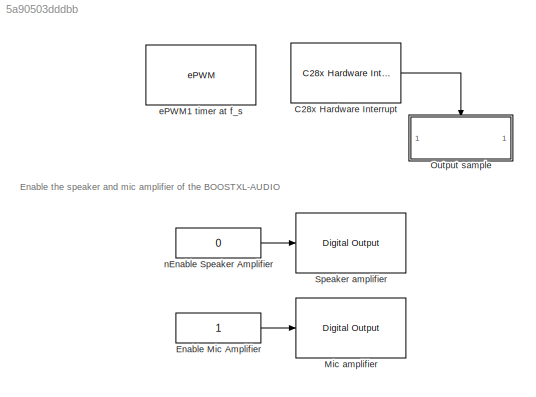
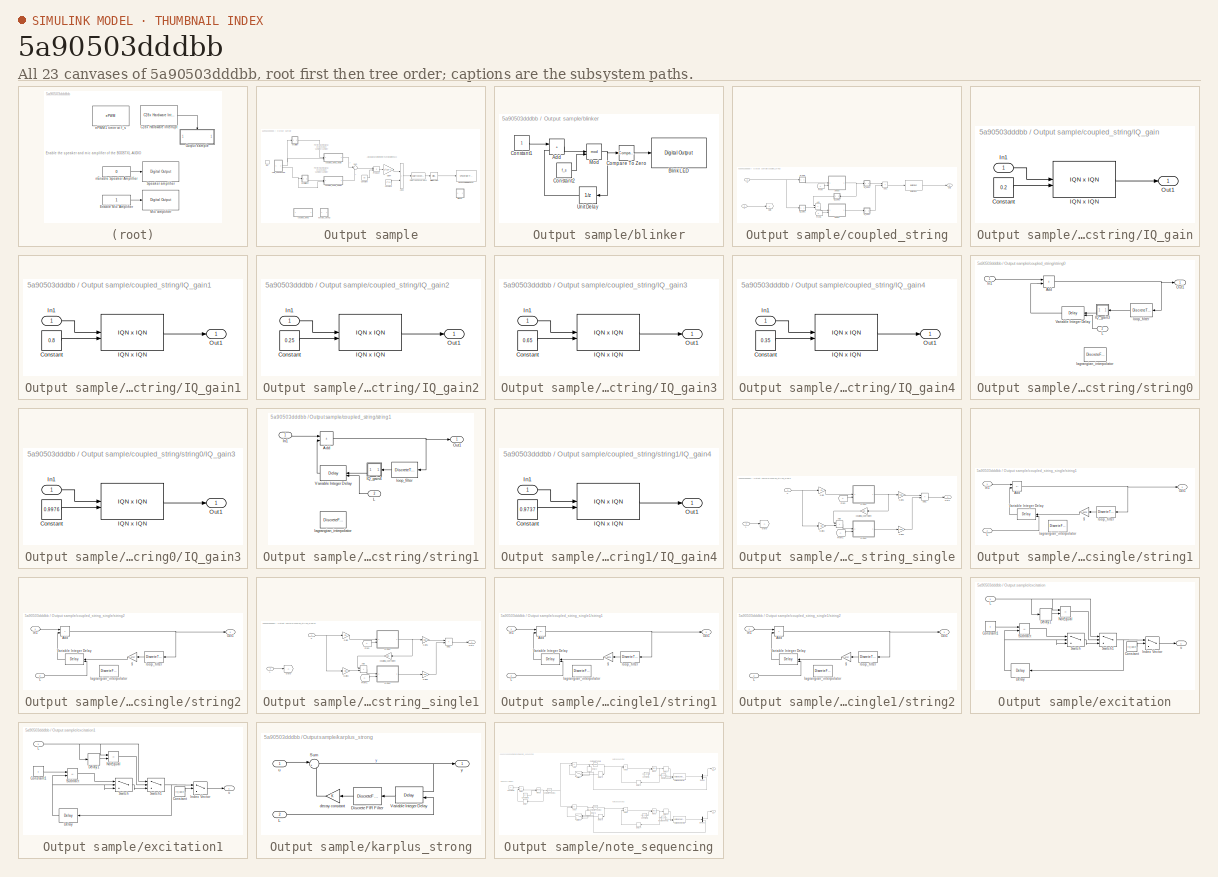
[diagram: thumbnail index - all 23 canvases of the model, root first then tree order]
MODEL slx_5a90503dddbb
KIND model
CONFIG AbsTol = auto
CONFIG EnableMultiTasking = off
CONFIG FixedStep = auto
CONFIG MaxStep = auto
CONFIG MinStep = auto
CONFIG RelTol = 1e-3
CONFIG SampleTimeConstraint = Unconstrained
CONFIG SolverName = FixedStepAuto
CONFIG StartTime = 0.0
CONFIG StopTime = 100000.0
BLOCK [Reference] C28x Hardware Interrupt  REF=c2000lib/Scheduling/C28x Hardware Interrupt
  SourceBlock = c2000lib/Scheduling/C28x Hardware Interrupt
  SourceType = C28x Interrupt Block
BLOCK [Constant] Enable Mic Amplifier
BLOCK [Reference] Mic amplifier  REF=c2837xDlib/Digital Output
  SourceBlock = c2837xDlib/Digital Output
  SourceType = F2837x GPIO Digital Output
  UserDataPersistent = on
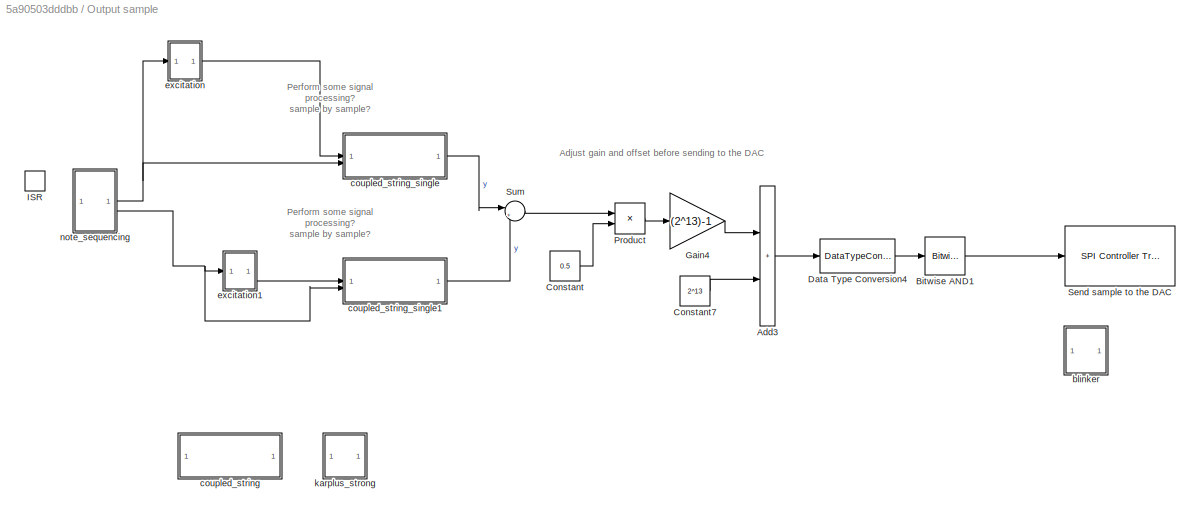
BLOCK [SubSystem] Output sample
  TreatAsAtomicUnit = on
BLOCK [Sum] Output sample/Add3
  IconShape = rectangular
BLOCK [Reference] Output sample/Bitwise AND1  REF=simulink/Logic and Bit
Operations/Bitwise
Operator
  SourceBlock = simulink/Logic and Bit\nOperations/Bitwise\nOperator
  SourceType = Bitwise Operator
BLOCK [Constant] Output sample/Constant
  Value = 0.5
BLOCK [Constant] Output sample/Constant7
  OutDataTypeStr = single
  Value = 2^13
BLOCK [DataTypeConversion] Output sample/Data Type Conversion4
  OutDataTypeStr = uint16
  RndMeth = Floor
  SaturateOnIntegerOverflow = off
BLOCK [Gain] Output sample/Gain4
  Gain = (2^13)-1
BLOCK [TriggerPort] Output sample/ISR
  StatesWhenEnabling = held
  TriggerType = function-call
  VariantControl = (inherit)
BLOCK [Product] Output sample/Product
BLOCK [Reference] Output sample/Send sample to the DAC  REF=c280xlib/SPI Controller Transfer
  SourceBlock = c280xlib/SPI Controller Transfer
  SourceType = codertarget.tic2000.blocks.SPIMasterTransfer
BLOCK [Sum] Output sample/Sum
  Inputs = |++
BLOCK [SubSystem] Output sample/blinker
BLOCK [Sum] Output sample/blinker/Add
  IconShape = rectangular
BLOCK [Reference] Output sample/blinker/Blink LED  REF=c2837xDlib/Digital Output
  SourceBlock = c2837xDlib/Digital Output
  SourceType = F2837x GPIO Digital Output
  UserDataPersistent = on
BLOCK [Reference] Output sample/blinker/Compare To Zero  REF=simulink/Logic and Bit
Operations/Compare
To Zero
  SourceBlock = simulink/Logic and Bit\nOperations/Compare\nTo Zero
  SourceType = Compare To Zero
BLOCK [Constant] Output sample/blinker/Constant1
  OutDataTypeStr = uint16
BLOCK [Constant] Output sample/blinker/Constant2
  OutDataTypeStr = uint16
  Value = f_s
BLOCK [Math] Output sample/blinker/Mod
  Operator = mod
BLOCK [UnitDelay] Output sample/blinker/Unit Delay
  HasFrameUpgradeWarning = on
  NameLocation = top
  SampleTime = -1
BLOCK [SubSystem] Output sample/coupled_string
  Commented = on
BLOCK [Sum] Output sample/coupled_string/Add
  AccumDataTypeStr = fixdt(1,32,30)
  IconShape = rectangular
  OutDataTypeStr = fixdt(1,32,30)
BLOCK [Sum] Output sample/coupled_string/Add1
  AccumDataTypeStr = Inherit: Same as first input
  IconShape = rectangular
  OutDataTypeStr = Inherit: Same as first input
BLOCK [From] Output sample/coupled_string/From
BLOCK [From] Output sample/coupled_string/From1
BLOCK [Goto] Output sample/coupled_string/Goto
BLOCK [Reference] Output sample/coupled_string/IQN to Float  REF=tiiqmathlib/IQN to Float
  SourceBlock = tiiqmathlib/IQN to Float
  SourceType = IQN to Float
BLOCK [SubSystem] Output sample/coupled_string/IQ_gain
BLOCK [Constant] Output sample/coupled_string/IQ_gain/Constant
  OutDataTypeStr = fixdt(1,32,30)
  Value = 0.2
BLOCK [Reference] Output sample/coupled_string/IQ_gain/IQN x IQN  REF=tiiqmathlib/IQN x IQN
  SourceBlock = tiiqmathlib/IQN x IQN
  SourceType = IQN x IQN
BLOCK [Inport] Output sample/coupled_string/IQ_gain/In1
  OutDataTypeStr = fixdt(1,32,30)
BLOCK [Outport] Output sample/coupled_string/IQ_gain/Out1
  OutDataTypeStr = fixdt(1,32,30)
BLOCK [SubSystem] Output sample/coupled_string/IQ_gain1
BLOCK [Constant] Output sample/coupled_string/IQ_gain1/Constant
  OutDataTypeStr = fixdt(1,32,30)
  Value = 0.8
BLOCK [Reference] Output sample/coupled_string/IQ_gain1/IQN x IQN  REF=tiiqmathlib/IQN x IQN
  SourceBlock = tiiqmathlib/IQN x IQN
  SourceType = IQN x IQN
BLOCK [Inport] Output sample/coupled_string/IQ_gain1/In1
BLOCK [Outport] Output sample/coupled_string/IQ_gain1/Out1
BLOCK [SubSystem] Output sample/coupled_string/IQ_gain2
BLOCK [Constant] Output sample/coupled_string/IQ_gain2/Constant
  OutDataTypeStr = fixdt(1,32,30)
  Value = 0.25
BLOCK [Reference] Output sample/coupled_string/IQ_gain2/IQN x IQN  REF=tiiqmathlib/IQN x IQN
  SourceBlock = tiiqmathlib/IQN x IQN
  SourceType = IQN x IQN
BLOCK [Inport] Output sample/coupled_string/IQ_gain2/In1
  LockScale = on
  OutDataTypeStr = fixdt(1,32,30)
BLOCK [Outport] Output sample/coupled_string/IQ_gain2/Out1
  OutDataTypeStr = fixdt(1,32,30)
BLOCK [SubSystem] Output sample/coupled_string/IQ_gain3
BLOCK [Constant] Output sample/coupled_string/IQ_gain3/Constant
  OutDataTypeStr = fixdt(1,32,30)
  Value = 0.65
BLOCK [Reference] Output sample/coupled_string/IQ_gain3/IQN x IQN  REF=tiiqmathlib/IQN x IQN
  SourceBlock = tiiqmathlib/IQN x IQN
  SourceType = IQN x IQN
BLOCK [Inport] Output sample/coupled_string/IQ_gain3/In1
BLOCK [Outport] Output sample/coupled_string/IQ_gain3/Out1
BLOCK [SubSystem] Output sample/coupled_string/IQ_gain4
BLOCK [Constant] Output sample/coupled_string/IQ_gain4/Constant
  OutDataTypeStr = fixdt(1,32,30)
  Value = 0.35
BLOCK [Reference] Output sample/coupled_string/IQ_gain4/IQN x IQN  REF=tiiqmathlib/IQN x IQN
  SourceBlock = tiiqmathlib/IQN x IQN
  SourceType = IQN x IQN
BLOCK [Inport] Output sample/coupled_string/IQ_gain4/In1
BLOCK [Outport] Output sample/coupled_string/IQ_gain4/Out1
BLOCK [Inport] Output sample/coupled_string/L
  Port = 2
BLOCK [Outport] Output sample/coupled_string/Out1
BLOCK [SubSystem] Output sample/coupled_string/string0
BLOCK [Sum] Output sample/coupled_string/string0/Add
  AccumDataTypeStr = fixdt(1,32,30)
  IconShape = rectangular
  OutDataTypeStr = fixdt(1,32,30)
BLOCK [SubSystem] Output sample/coupled_string/string0/IQ_gain3
BLOCK [Constant] Output sample/coupled_string/string0/IQ_gain3/Constant
  OutDataTypeStr = fixdt(1,32,30)
  Value = 0.9976
BLOCK [Reference] Output sample/coupled_string/string0/IQ_gain3/IQN x IQN  REF=tiiqmathlib/IQN x IQN
  SourceBlock = tiiqmathlib/IQN x IQN
  SourceType = IQN x IQN
BLOCK [Inport] Output sample/coupled_string/string0/IQ_gain3/In1
  OutDataTypeStr = fixdt(1,32,30)
BLOCK [Outport] Output sample/coupled_string/string0/IQ_gain3/Out1
  OutDataTypeStr = fixdt(1,32,30)
BLOCK [Inport] Output sample/coupled_string/string0/In1
BLOCK [Inport] Output sample/coupled_string/string0/L
  Port = 2
BLOCK [Outport] Output sample/coupled_string/string0/Out1
BLOCK [Delay] Output sample/coupled_string/string0/Variable Integer Delay
  DelayLengthSource = Input port
  DelayLengthUpperLimit = 256
  InputPortMap = u0,p1
  PreventDirectFeedthrough = on
  UseCircularBuffer = on
BLOCK [DiscreteFir] Output sample/coupled_string/string0/lagrangian_interpolator
  Coefficients = frac_delay_inter
  Commented = on
  InputPortMap = u0
  OutputPortMap = o0
BLOCK [DiscreteTransferFcn] Output sample/coupled_string/string0/loop_filter
  DenAccumDataTypeStr = fixdt(1,32,30)
  DenCoefDataTypeStr = fixdt(1,32,30)
  DenProductDataTypeStr = fixdt(1,32,30)
  Denominator = [1 -0.1490]
  InputPortMap = u0
  NumAccumDataTypeStr = fixdt(1,32,30)
  NumCoefDataTypeStr = fixdt(1,32,30)
  NumProductDataTypeStr = fixdt(1,32,30)
  Numerator = [1-0.1490]
  OutDataTypeStr = fixdt(1,32,30)
  StateDataTypeStr = fixdt(1,32,30)
BLOCK [SubSystem] Output sample/coupled_string/string1
BLOCK [Sum] Output sample/coupled_string/string1/Add
  AccumDataTypeStr = fixdt(1,32,30)
  IconShape = rectangular
  OutDataTypeStr = fixdt(1,32,30)
BLOCK [SubSystem] Output sample/coupled_string/string1/IQ_gain4
BLOCK [Constant] Output sample/coupled_string/string1/IQ_gain4/Constant
  OutDataTypeStr = fixdt(1,32,30)
  Value = 0.9737
BLOCK [Reference] Output sample/coupled_string/string1/IQ_gain4/IQN x IQN  REF=tiiqmathlib/IQN x IQN
  SourceBlock = tiiqmathlib/IQN x IQN
  SourceType = IQN x IQN
BLOCK [Inport] Output sample/coupled_string/string1/IQ_gain4/In1
BLOCK [Outport] Output sample/coupled_string/string1/IQ_gain4/Out1
BLOCK [Inport] Output sample/coupled_string/string1/In1
BLOCK [Inport] Output sample/coupled_string/string1/L
  Port = 2
BLOCK [Outport] Output sample/coupled_string/string1/Out1
BLOCK [Delay] Output sample/coupled_string/string1/Variable Integer Delay
  DelayLengthSource = Input port
  DelayLengthUpperLimit = 256
  InputPortMap = u0,p1
  PreventDirectFeedthrough = on
  UseCircularBuffer = on
BLOCK [DiscreteFir] Output sample/coupled_string/string1/lagrangian_interpolator
  Coefficients = frac_delay_inter
  Commented = on
  InputPortMap = u0
  OutputPortMap = o0
BLOCK [DiscreteTransferFcn] Output sample/coupled_string/string1/loop_filter
  DenAccumDataTypeStr = fixdt(1,32,30)
  DenCoefDataTypeStr = fixdt(1,32,30)
  DenProductDataTypeStr = fixdt(1,32,30)
  Denominator = [1 -0.0878]
  InputPortMap = u0
  NumAccumDataTypeStr = fixdt(1,32,30)
  NumCoefDataTypeStr = fixdt(1,32,30)
  NumProductDataTypeStr = fixdt(1,32,30)
  Numerator = [1-0.0878]
  OutDataTypeStr = fixdt(1,32,30)
  StateDataTypeStr = fixdt(1,32,30)
BLOCK [Inport] Output sample/coupled_string/u
BLOCK [SubSystem] Output sample/coupled_string_single
BLOCK [Sum] Output sample/coupled_string_single/Add
  IconShape = rectangular
BLOCK [Sum] Output sample/coupled_string_single/Add1
  IconShape = rectangular
BLOCK [From] Output sample/coupled_string_single/From
BLOCK [From] Output sample/coupled_string_single/From1
BLOCK [Gain] Output sample/coupled_string_single/Gain
  Gain = 0.2
BLOCK [Gain] Output sample/coupled_string_single/Gain1
  Gain = 0.65
BLOCK [Gain] Output sample/coupled_string_single/Gain3
  Gain = 0.8
BLOCK [Gain] Output sample/coupled_string_single/Gain4
  Gain = 0.35
BLOCK [Goto] Output sample/coupled_string_single/Goto
BLOCK [Inport] Output sample/coupled_string_single/L
  Port = 2
BLOCK [Outport] Output sample/coupled_string_single/Out1
  OutDataTypeStr = single
BLOCK [Gain] Output sample/coupled_string_single/coupling_coefficient
  Gain = 0.25
BLOCK [SubSystem] Output sample/coupled_string_single/string1
BLOCK [Sum] Output sample/coupled_string_single/string1/Add
  IconShape = rectangular
  Inputs = +-
  OutDataTypeStr = single
BLOCK [Inport] Output sample/coupled_string_single/string1/In1
BLOCK [Inport] Output sample/coupled_string_single/string1/L
  Port = 2
BLOCK [Outport] Output sample/coupled_string_single/string1/Out1
BLOCK [Delay] Output sample/coupled_string_single/string1/Variable Integer Delay
  DelayLengthSource = Input port
  DelayLengthUpperLimit = 256
  InputPortMap = u0,p1
  PreventDirectFeedthrough = on
  UseCircularBuffer = on
BLOCK [Gain] Output sample/coupled_string_single/string1/g
  Gain = 0.9976
BLOCK [DiscreteFir] Output sample/coupled_string_single/string1/lagrangian_interpolator
  Coefficients = frac_delay_inter
  Commented = on
  InputPortMap = u0
  OutputPortMap = o0
BLOCK [DiscreteTransferFcn] Output sample/coupled_string_single/string1/loop_filter
  Denominator = [1 -0.1490]
  InputPortMap = u0
  Numerator = [1-0.1490]
BLOCK [SubSystem] Output sample/coupled_string_single/string2
BLOCK [Sum] Output sample/coupled_string_single/string2/Add
  IconShape = rectangular
  OutDataTypeStr = single
BLOCK [Inport] Output sample/coupled_string_single/string2/In1
BLOCK [Inport] Output sample/coupled_string_single/string2/L
  Port = 2
BLOCK [Outport] Output sample/coupled_string_single/string2/Out1
BLOCK [Delay] Output sample/coupled_string_single/string2/Variable Integer Delay
  DelayLengthSource = Input port
  DelayLengthUpperLimit = 256
  InputPortMap = u0,p1
  PreventDirectFeedthrough = on
  UseCircularBuffer = on
BLOCK [Gain] Output sample/coupled_string_single/string2/g
  Gain = 0.9737
BLOCK [DiscreteFir] Output sample/coupled_string_single/string2/lagrangian_interpolator
  Coefficients = frac_delay_inter
  Commented = on
  InputPortMap = u0
  OutputPortMap = o0
BLOCK [DiscreteTransferFcn] Output sample/coupled_string_single/string2/loop_filter
  Denominator = [1 -0.0878]
  InputPortMap = u0
  Numerator = [1-0.0878]
BLOCK [Inport] Output sample/coupled_string_single/u
  OutDataTypeStr = single
BLOCK [SubSystem] Output sample/coupled_string_single1
BLOCK [Sum] Output sample/coupled_string_single1/Add
  IconShape = rectangular
BLOCK [Sum] Output sample/coupled_string_single1/Add1
  IconShape = rectangular
BLOCK [From] Output sample/coupled_string_single1/From
BLOCK [From] Output sample/coupled_string_single1/From1
BLOCK [Gain] Output sample/coupled_string_single1/Gain
  Gain = 0.2
BLOCK [Gain] Output sample/coupled_string_single1/Gain1
  Gain = 0.65
BLOCK [Gain] Output sample/coupled_string_single1/Gain3
  Gain = 0.8
BLOCK [Gain] Output sample/coupled_string_single1/Gain4
  Gain = 0.35
BLOCK [Goto] Output sample/coupled_string_single1/Goto
BLOCK [Inport] Output sample/coupled_string_single1/L
  Port = 2
BLOCK [Outport] Output sample/coupled_string_single1/Out1
  OutDataTypeStr = single
BLOCK [Gain] Output sample/coupled_string_single1/coupling_coefficient
  Gain = 0.25
BLOCK [SubSystem] Output sample/coupled_string_single1/string1
BLOCK [Sum] Output sample/coupled_string_single1/string1/Add
  IconShape = rectangular
  Inputs = +-
  OutDataTypeStr = single
BLOCK [Inport] Output sample/coupled_string_single1/string1/In1
BLOCK [Inport] Output sample/coupled_string_single1/string1/L
  Port = 2
BLOCK [Outport] Output sample/coupled_string_single1/string1/Out1
BLOCK [Delay] Output sample/coupled_string_single1/string1/Variable Integer Delay
  DelayLengthSource = Input port
  DelayLengthUpperLimit = 256
  InputPortMap = u0,p1
  PreventDirectFeedthrough = on
  UseCircularBuffer = on
BLOCK [Gain] Output sample/coupled_string_single1/string1/g
  Gain = 0.9976
BLOCK [DiscreteFir] Output sample/coupled_string_single1/string1/lagrangian_interpolator
  Coefficients = frac_delay_inter
  Commented = on
  InputPortMap = u0
  OutputPortMap = o0
BLOCK [DiscreteTransferFcn] Output sample/coupled_string_single1/string1/loop_filter
  Denominator = [1 -0.1490]
  InputPortMap = u0
  Numerator = [1-0.1490]
BLOCK [SubSystem] Output sample/coupled_string_single1/string2
BLOCK [Sum] Output sample/coupled_string_single1/string2/Add
  IconShape = rectangular
  OutDataTypeStr = single
BLOCK [Inport] Output sample/coupled_string_single1/string2/In1
BLOCK [Inport] Output sample/coupled_string_single1/string2/L
  Port = 2
BLOCK [Outport] Output sample/coupled_string_single1/string2/Out1
BLOCK [Delay] Output sample/coupled_string_single1/string2/Variable Integer Delay
  DelayLengthSource = Input port
  DelayLengthUpperLimit = 256
  InputPortMap = u0,p1
  PreventDirectFeedthrough = on
  UseCircularBuffer = on
BLOCK [Gain] Output sample/coupled_string_single1/string2/g
  Gain = 0.9737
BLOCK [DiscreteFir] Output sample/coupled_string_single1/string2/lagrangian_interpolator
  Coefficients = frac_delay_inter
  Commented = on
  InputPortMap = u0
  OutputPortMap = o0
BLOCK [DiscreteTransferFcn] Output sample/coupled_string_single1/string2/loop_filter
  Denominator = [1 -0.0878]
  InputPortMap = u0
  Numerator = [1-0.0878]
BLOCK [Inport] Output sample/coupled_string_single1/u
  OutDataTypeStr = single
BLOCK [SubSystem] Output sample/excitation
BLOCK [Constant] Output sample/excitation/Constant
  SampleTime = -1
  Value = in_table
BLOCK [Constant] Output sample/excitation/Constant1
  SampleTime = -1
BLOCK [Delay] Output sample/excitation/Delay
  DelayLength = 1
  InitialCondition = 0
  InputPortMap = u0
  UseCircularBuffer = on
  UserDataPersistent = on
BLOCK [Delay] Output sample/excitation/Delay1
  DelayLength = 1
  InputPortMap = u0
BLOCK [MultiPortSwitch] Output sample/excitation/Index Vector
  DataPortOrder = Zero-based contiguous
  InputSameDT = off
  Inputs = 1
  SaturateOnIntegerOverflow = off
  zeroidx = on
BLOCK [Inport] Output sample/excitation/L
BLOCK [RelationalOperator] Output sample/excitation/NotEqual
  InputSameDT = off
  Operator = ~=
  OutDataTypeStr = boolean
  RndMeth = Simplest
BLOCK [Sum] Output sample/excitation/Subtract
  IconShape = rectangular
  Inputs = -+
BLOCK [Switch] Output sample/excitation/Switch
  Criteria = u2 ~= 0
  InputSameDT = off
  SaturateOnIntegerOverflow = off
BLOCK [Switch] Output sample/excitation/Switch1
  Criteria = u2 > Threshold
  InputSameDT = off
  SaturateOnIntegerOverflow = off
BLOCK [Outport] Output sample/excitation/u
BLOCK [SubSystem] Output sample/excitation1
BLOCK [Constant] Output sample/excitation1/Constant
  SampleTime = -1
  Value = in_table
BLOCK [Constant] Output sample/excitation1/Constant1
  SampleTime = -1
BLOCK [Delay] Output sample/excitation1/Delay
  DelayLength = 1
  InitialCondition = 0
  InputPortMap = u0
  UseCircularBuffer = on
  UserDataPersistent = on
BLOCK [Delay] Output sample/excitation1/Delay1
  DelayLength = 1
  InputPortMap = u0
BLOCK [MultiPortSwitch] Output sample/excitation1/Index Vector
  DataPortOrder = Zero-based contiguous
  InputSameDT = off
  Inputs = 1
  SaturateOnIntegerOverflow = off
  zeroidx = on
BLOCK [Inport] Output sample/excitation1/L
BLOCK [RelationalOperator] Output sample/excitation1/NotEqual
  InputSameDT = off
  Operator = ~=
  OutDataTypeStr = boolean
  RndMeth = Simplest
BLOCK [Sum] Output sample/excitation1/Subtract
  IconShape = rectangular
  Inputs = -+
BLOCK [Switch] Output sample/excitation1/Switch
  Criteria = u2 ~= 0
  InputSameDT = off
  SaturateOnIntegerOverflow = off
BLOCK [Switch] Output sample/excitation1/Switch1
  Criteria = u2 > Threshold
  InputSameDT = off
  SaturateOnIntegerOverflow = off
BLOCK [Outport] Output sample/excitation1/u
BLOCK [SubSystem] Output sample/karplus_strong
  Commented = on
BLOCK [DiscreteFir] Output sample/karplus_strong/Discrete FIR Filter
  InputPortMap = u0
  OutputPortMap = o0
BLOCK [Inport] Output sample/karplus_strong/L
  Port = 2
BLOCK [Sum] Output sample/karplus_strong/Sum
  Inputs = |++
BLOCK [Delay] Output sample/karplus_strong/Variable Integer Delay
  DelayLengthSource = Input port
  DelayLengthUpperLimit = 256
  InputPortMap = u0,p1
  PreventDirectFeedthrough = on
  UseCircularBuffer = on
BLOCK [Gain] Output sample/karplus_strong/decay constant
BLOCK [Inport] Output sample/karplus_strong/u
BLOCK [Outport] Output sample/karplus_strong/y
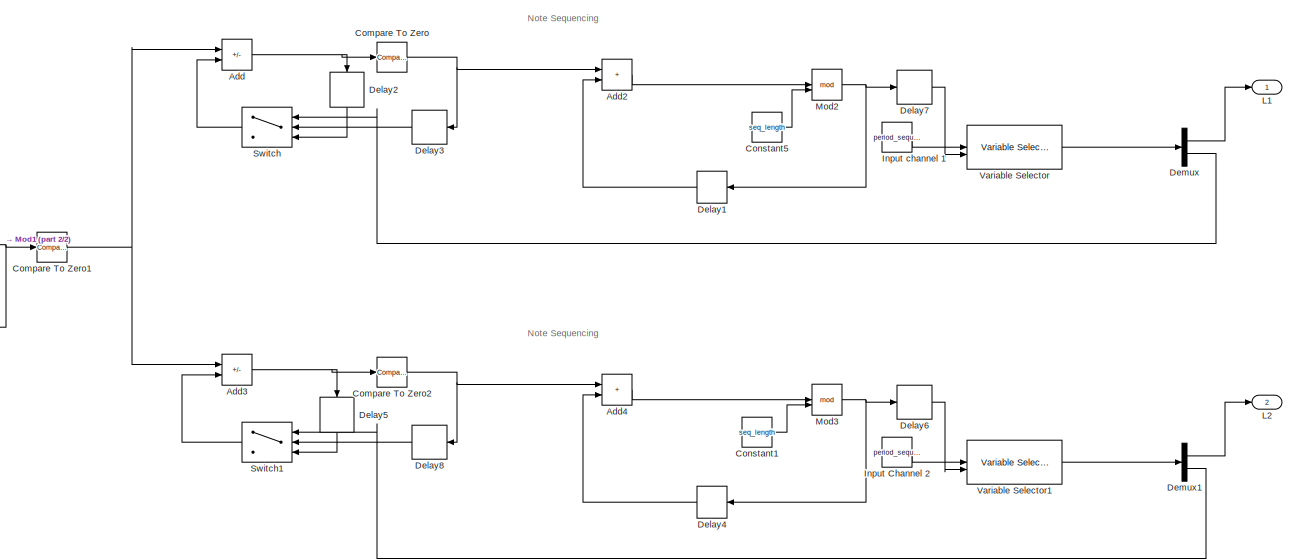
[diagram: Output sample/note_sequencing - part 1/2, most of the canvas]
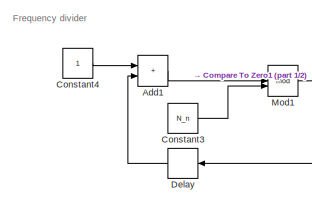
[diagram: Output sample/note_sequencing - part 2/2, middle left region]
BLOCK [SubSystem] Output sample/note_sequencing
BLOCK [Sum] Output sample/note_sequencing/Add
  IconShape = rectangular
  Inputs = -+
BLOCK [Sum] Output sample/note_sequencing/Add1
  IconShape = rectangular
BLOCK [Sum] Output sample/note_sequencing/Add2
  IconShape = rectangular
BLOCK [Sum] Output sample/note_sequencing/Add3
  IconShape = rectangular
  Inputs = -+
BLOCK [Sum] Output sample/note_sequencing/Add4
  IconShape = rectangular
BLOCK [Reference] Output sample/note_sequencing/Compare To Zero  REF=simulink/Logic and Bit
Operations/Compare
To Zero
  SourceBlock = simulink/Logic and Bit\nOperations/Compare\nTo Zero
  SourceType = Compare To Zero
BLOCK [Reference] Output sample/note_sequencing/Compare To Zero1  REF=simulink/Logic and Bit
Operations/Compare
To Zero
  SourceBlock = simulink/Logic and Bit\nOperations/Compare\nTo Zero
  SourceType = Compare To Zero
BLOCK [Reference] Output sample/note_sequencing/Compare To Zero2  REF=simulink/Logic and Bit
Operations/Compare
To Zero
  SourceBlock = simulink/Logic and Bit\nOperations/Compare\nTo Zero
  SourceType = Compare To Zero
BLOCK [Constant] Output sample/note_sequencing/Constant1
  OutDataTypeStr = uint32
  Value = seq_length
BLOCK [Constant] Output sample/note_sequencing/Constant3
  OutDataTypeStr = uint32
  Value = N_n
BLOCK [Constant] Output sample/note_sequencing/Constant4
  OutDataTypeStr = uint32
BLOCK [Constant] Output sample/note_sequencing/Constant5
  OutDataTypeStr = uint32
  Value = seq_length
BLOCK [Delay] Output sample/note_sequencing/Delay
  DelayLength = 1
  InitialCondition = 0
  InputPortMap = u0
  UseCircularBuffer = on
  UserDataPersistent = on
BLOCK [Delay] Output sample/note_sequencing/Delay1
  DelayLength = 1
  InitialCondition = 0
  InputPortMap = u0
  UseCircularBuffer = on
  UserDataPersistent = on
BLOCK [Delay] Output sample/note_sequencing/Delay2
  DelayLength = 1
  InitialCondition = 0
  InputPortMap = u0
  NameLocation = left
BLOCK [Delay] Output sample/note_sequencing/Delay3
  DelayLength = 1
  InitialCondition = 0
  InputPortMap = u0
  NameLocation = top
BLOCK [Delay] Output sample/note_sequencing/Delay4
  DelayLength = 1
  InitialCondition = 0
  InputPortMap = u0
  UseCircularBuffer = on
  UserDataPersistent = on
BLOCK [Delay] Output sample/note_sequencing/Delay5
  DelayLength = 1
  InitialCondition = 0
  InputPortMap = u0
  NameLocation = left
BLOCK [Delay] Output sample/note_sequencing/Delay6
  DelayLength = 1
  InitialCondition = 0
  InputPortMap = u0
BLOCK [Delay] Output sample/note_sequencing/Delay7
  DelayLength = 1
  InitialCondition = 0
  InputPortMap = u0
BLOCK [Delay] Output sample/note_sequencing/Delay8
  DelayLength = 1
  InitialCondition = 0
  InputPortMap = u0
  NameLocation = top
BLOCK [Demux] Output sample/note_sequencing/Demux
  Outputs = 2
BLOCK [Demux] Output sample/note_sequencing/Demux1
  Outputs = 2
BLOCK [Constant] Output sample/note_sequencing/Input Channel 2
  Value = period_sequence_2
BLOCK [Constant] Output sample/note_sequencing/Input channel 1
  Value = period_sequence_1
BLOCK [Outport] Output sample/note_sequencing/L1
BLOCK [Outport] Output sample/note_sequencing/L2
  Port = 2
BLOCK [Math] Output sample/note_sequencing/Mod1
  Operator = mod
BLOCK [Math] Output sample/note_sequencing/Mod2
  Operator = mod
BLOCK [Math] Output sample/note_sequencing/Mod3
  Operator = mod
BLOCK [Switch] Output sample/note_sequencing/Switch
  Criteria = u2 > Threshold
  InputSameDT = off
  NameLocation = top
  SaturateOnIntegerOverflow = off
BLOCK [Switch] Output sample/note_sequencing/Switch1
  Criteria = u2 > Threshold
  InputSameDT = off
  NameLocation = top
  SaturateOnIntegerOverflow = off
BLOCK [Reference] Output sample/note_sequencing/Variable Selector  REF=dspindex/Variable
Selector
  SourceBlock = dspindex/Variable\nSelector
  SourceType = Variable Selector
BLOCK [Reference] Output sample/note_sequencing/Variable Selector1  REF=dspindex/Variable
Selector
  SourceBlock = dspindex/Variable\nSelector
  SourceType = Variable Selector
BLOCK [Reference] Speaker amplifier  REF=c2837xDlib/Digital Output
  SourceBlock = c2837xDlib/Digital Output
  SourceType = F2837x GPIO Digital Output
  UserDataPersistent = on
BLOCK [Reference] ePWM1 timer at f_s  REF=c2802xlib/ePWM
  SourceBlock = c2802xlib/ePWM
  SourceType = ePWM Type 1-4
  UserDataPersistent = on
BLOCK [Constant] nEnable Speaker Amplifier
  Value = 0
ANNOTATION (root): Enable the speaker and mic amplifier of the BOOSTXL-AUDIO
ANNOTATION Output sample: Adjust gain and offset before sending to the DAC
ANNOTATION Output sample: Perform some signal processing? sample by sample?
ANNOTATION Output sample/note_sequencing: Frequency divider
ANNOTATION Output sample/note_sequencing: Note Sequencing
LINE C28x Hardware Interrupt:1 -> Output sample:trigger
LINE Enable Mic Amplifier:1 -> Mic amplifier:1
LINE Output sample/Add3:1 -> Output sample/Data Type Conversion4:1
LINE Output sample/Bitwise AND1:1 -> Output sample/Send sample to the DAC:1
LINE Output sample/Constant7:1 -> Output sample/Add3:2
LINE Output sample/Constant:1 -> Output sample/Product:2
LINE Output sample/Data Type Conversion4:1 -> Output sample/Bitwise AND1:1
LINE Output sample/Gain4:1 -> Output sample/Add3:1
LINE Output sample/Product:1 -> Output sample/Gain4:1
LINE Output sample/Sum:1 -> Output sample/Product:1
LINE Output sample/blinker/Add:1 -> Output sample/blinker/Mod:1
LINE Output sample/blinker/Compare To Zero:1 -> Output sample/blinker/Blink LED:1
LINE Output sample/blinker/Constant1:1 -> Output sample/blinker/Add:1
LINE Output sample/blinker/Constant2:1 -> Output sample/blinker/Mod:2
NET Output sample/blinker/Mod:1 -> Output sample/blinker/Compare To Zero:1, Output sample/blinker/Unit Delay:1
LINE Output sample/blinker/Unit Delay:1 -> Output sample/blinker/Add:2
LINE Output sample/coupled_string/Add1:1 -> Output sample/coupled_string/IQN to Float:1
LINE Output sample/coupled_string/Add:1 -> Output sample/coupled_string/string1:1
LINE Output sample/coupled_string/From1:1 -> Output sample/coupled_string/string1:2
LINE Output sample/coupled_string/From:1 -> Output sample/coupled_string/string0:2
LINE Output sample/coupled_string/IQN to Float:1 -> Output sample/coupled_string/Out1:1
LINE Output sample/coupled_string/IQ_gain/Constant:1 -> Output sample/coupled_string/IQ_gain/IQN x IQN:2
LINE Output sample/coupled_string/IQ_gain/IQN x IQN:1 -> Output sample/coupled_string/IQ_gain/Out1:1
LINE Output sample/coupled_string/IQ_gain/In1:1 -> Output sample/coupled_string/IQ_gain/IQN x IQN:1
LINE Output sample/coupled_string/IQ_gain1/Constant:1 -> Output sample/coupled_string/IQ_gain1/IQN x IQN:2
LINE Output sample/coupled_string/IQ_gain1/IQN x IQN:1 -> Output sample/coupled_string/IQ_gain1/Out1:1
LINE Output sample/coupled_string/IQ_gain1/In1:1 -> Output sample/coupled_string/IQ_gain1/IQN x IQN:1
LINE Output sample/coupled_string/IQ_gain1:1 -> Output sample/coupled_string/Add:2
LINE Output sample/coupled_string/IQ_gain2/Constant:1 -> Output sample/coupled_string/IQ_gain2/IQN x IQN:2
LINE Output sample/coupled_string/IQ_gain2/IQN x IQN:1 -> Output sample/coupled_string/IQ_gain2/Out1:1
LINE Output sample/coupled_string/IQ_gain2/In1:1 -> Output sample/coupled_string/IQ_gain2/IQN x IQN:1
LINE Output sample/coupled_string/IQ_gain2:1 -> Output sample/coupled_string/Add:1
LINE Output sample/coupled_string/IQ_gain3/Constant:1 -> Output sample/coupled_string/IQ_gain3/IQN x IQN:2
LINE Output sample/coupled_string/IQ_gain3/IQN x IQN:1 -> Output sample/coupled_string/IQ_gain3/Out1:1
LINE Output sample/coupled_string/IQ_gain3/In1:1 -> Output sample/coupled_string/IQ_gain3/IQN x IQN:1
LINE Output sample/coupled_string/IQ_gain3:1 -> Output sample/coupled_string/Add1:1
LINE Output sample/coupled_string/IQ_gain4/Constant:1 -> Output sample/coupled_string/IQ_gain4/IQN x IQN:2
LINE Output sample/coupled_string/IQ_gain4/IQN x IQN:1 -> Output sample/coupled_string/IQ_gain4/Out1:1
LINE Output sample/coupled_string/IQ_gain4/In1:1 -> Output sample/coupled_string/IQ_gain4/IQN x IQN:1
LINE Output sample/coupled_string/IQ_gain4:1 -> Output sample/coupled_string/Add1:2
LINE Output sample/coupled_string/IQ_gain:1 -> Output sample/coupled_string/string0:1
LINE Output sample/coupled_string/L:1 -> Output sample/coupled_string/Goto:1
NET Output sample/coupled_string/string0/Add:1 -> Output sample/coupled_string/string0/Out1:1, Output sample/coupled_string/string0/loop_filter:1
LINE Output sample/coupled_string/string0/IQ_gain3/Constant:1 -> Output sample/coupled_string/string0/IQ_gain3/IQN x IQN:2
LINE Output sample/coupled_string/string0/IQ_gain3/IQN x IQN:1 -> Output sample/coupled_string/string0/IQ_gain3/Out1:1
LINE Output sample/coupled_string/string0/IQ_gain3/In1:1 -> Output sample/coupled_string/string0/IQ_gain3/IQN x IQN:1
LINE Output sample/coupled_string/string0/IQ_gain3:1 -> Output sample/coupled_string/string0/Variable Integer Delay:1
LINE Output sample/coupled_string/string0/In1:1 -> Output sample/coupled_string/string0/Add:1
LINE Output sample/coupled_string/string0/L:1 -> Output sample/coupled_string/string0/Variable Integer Delay:2
LINE Output sample/coupled_string/string0/Variable Integer Delay:1 -> Output sample/coupled_string/string0/Add:2
LINE Output sample/coupled_string/string0/loop_filter:1 -> Output sample/coupled_string/string0/IQ_gain3:1
NET Output sample/coupled_string/string0:1 -> Output sample/coupled_string/IQ_gain2:1, Output sample/coupled_string/IQ_gain3:1
NET Output sample/coupled_string/string1/Add:1 -> Output sample/coupled_string/string1/Out1:1, Output sample/coupled_string/string1/loop_filter:1
LINE Output sample/coupled_string/string1/IQ_gain4/Constant:1 -> Output sample/coupled_string/string1/IQ_gain4/IQN x IQN:2
LINE Output sample/coupled_string/string1/IQ_gain4/IQN x IQN:1 -> Output sample/coupled_string/string1/IQ_gain4/Out1:1
LINE Output sample/coupled_string/string1/IQ_gain4/In1:1 -> Output sample/coupled_string/string1/IQ_gain4/IQN x IQN:1
LINE Output sample/coupled_string/string1/IQ_gain4:1 -> Output sample/coupled_string/string1/Variable Integer Delay:1
LINE Output sample/coupled_string/string1/In1:1 -> Output sample/coupled_string/string1/Add:1
LINE Output sample/coupled_string/string1/L:1 -> Output sample/coupled_string/string1/Variable Integer Delay:2
LINE Output sample/coupled_string/string1/Variable Integer Delay:1 -> Output sample/coupled_string/string1/Add:2
LINE Output sample/coupled_string/string1/loop_filter:1 -> Output sample/coupled_string/string1/IQ_gain4:1
LINE Output sample/coupled_string/string1:1 -> Output sample/coupled_string/IQ_gain4:1
NET Output sample/coupled_string/u:1 -> Output sample/coupled_string/IQ_gain1:1, Output sample/coupled_string/IQ_gain:1
LINE Output sample/coupled_string_single/Add1:1 -> Output sample/coupled_string_single/Out1:1
LINE Output sample/coupled_string_single/Add:1 -> Output sample/coupled_string_single/string2:1
LINE Output sample/coupled_string_single/From1:1 -> Output sample/coupled_string_single/string2:2
LINE Output sample/coupled_string_single/From:1 -> Output sample/coupled_string_single/string1:2
LINE Output sample/coupled_string_single/Gain1:1 -> Output sample/coupled_string_single/Add1:1
LINE Output sample/coupled_string_single/Gain3:1 -> Output sample/coupled_string_single/Add:2
LINE Output sample/coupled_string_single/Gain4:1 -> Output sample/coupled_string_single/Add1:2
LINE Output sample/coupled_string_single/Gain:1 -> Output sample/coupled_string_single/string1:1
LINE Output sample/coupled_string_single/L:1 -> Output sample/coupled_string_single/Goto:1
LINE Output sample/coupled_string_single/coupling_coefficient:1 -> Output sample/coupled_string_single/Add:1
NET Output sample/coupled_string_single/string1/Add:1 -> Output sample/coupled_string_single/string1/Out1:1, Output sample/coupled_string_single/string1/loop_filter:1
LINE Output sample/coupled_string_single/string1/In1:1 -> Output sample/coupled_string_single/string1/Add:1
LINE Output sample/coupled_string_single/string1/L:1 -> Output sample/coupled_string_single/string1/Variable Integer Delay:2
LINE Output sample/coupled_string_single/string1/Variable Integer Delay:1 -> Output sample/coupled_string_single/string1/Add:2
LINE Output sample/coupled_string_single/string1/g:1 -> Output sample/coupled_string_single/string1/Variable Integer Delay:1
LINE Output sample/coupled_string_single/string1/loop_filter:1 -> Output sample/coupled_string_single/string1/g:1
NET Output sample/coupled_string_single/string1:1 -> Output sample/coupled_string_single/Gain1:1, Output sample/coupled_string_single/coupling_coefficient:1
NET Output sample/coupled_string_single/string2/Add:1 -> Output sample/coupled_string_single/string2/Out1:1, Output sample/coupled_string_single/string2/loop_filter:1
LINE Output sample/coupled_string_single/string2/In1:1 -> Output sample/coupled_string_single/string2/Add:1
LINE Output sample/coupled_string_single/string2/L:1 -> Output sample/coupled_string_single/string2/Variable Integer Delay:2
LINE Output sample/coupled_string_single/string2/Variable Integer Delay:1 -> Output sample/coupled_string_single/string2/Add:2
LINE Output sample/coupled_string_single/string2/g:1 -> Output sample/coupled_string_single/string2/Variable Integer Delay:1
LINE Output sample/coupled_string_single/string2/loop_filter:1 -> Output sample/coupled_string_single/string2/g:1
LINE Output sample/coupled_string_single/string2:1 -> Output sample/coupled_string_single/Gain4:1
NET Output sample/coupled_string_single/u:1 -> Output sample/coupled_string_single/Gain3:1, Output sample/coupled_string_single/Gain:1
LINE Output sample/coupled_string_single1/Add1:1 -> Output sample/coupled_string_single1/Out1:1
LINE Output sample/coupled_string_single1/Add:1 -> Output sample/coupled_string_single1/string2:1
LINE Output sample/coupled_string_single1/From1:1 -> Output sample/coupled_string_single1/string2:2
LINE Output sample/coupled_string_single1/From:1 -> Output sample/coupled_string_single1/string1:2
LINE Output sample/coupled_string_single1/Gain1:1 -> Output sample/coupled_string_single1/Add1:1
LINE Output sample/coupled_string_single1/Gain3:1 -> Output sample/coupled_string_single1/Add:2
LINE Output sample/coupled_string_single1/Gain4:1 -> Output sample/coupled_string_single1/Add1:2
LINE Output sample/coupled_string_single1/Gain:1 -> Output sample/coupled_string_single1/string1:1
LINE Output sample/coupled_string_single1/L:1 -> Output sample/coupled_string_single1/Goto:1
LINE Output sample/coupled_string_single1/coupling_coefficient:1 -> Output sample/coupled_string_single1/Add:1
NET Output sample/coupled_string_single1/string1/Add:1 -> Output sample/coupled_string_single1/string1/Out1:1, Output sample/coupled_string_single1/string1/loop_filter:1
LINE Output sample/coupled_string_single1/string1/In1:1 -> Output sample/coupled_string_single1/string1/Add:1
LINE Output sample/coupled_string_single1/string1/L:1 -> Output sample/coupled_string_single1/string1/Variable Integer Delay:2
LINE Output sample/coupled_string_single1/string1/Variable Integer Delay:1 -> Output sample/coupled_string_single1/string1/Add:2
LINE Output sample/coupled_string_single1/string1/g:1 -> Output sample/coupled_string_single1/string1/Variable Integer Delay:1
LINE Output sample/coupled_string_single1/string1/loop_filter:1 -> Output sample/coupled_string_single1/string1/g:1
NET Output sample/coupled_string_single1/string1:1 -> Output sample/coupled_string_single1/Gain1:1, Output sample/coupled_string_single1/coupling_coefficient:1
NET Output sample/coupled_string_single1/string2/Add:1 -> Output sample/coupled_string_single1/string2/Out1:1, Output sample/coupled_string_single1/string2/loop_filter:1
LINE Output sample/coupled_string_single1/string2/In1:1 -> Output sample/coupled_string_single1/string2/Add:1
LINE Output sample/coupled_string_single1/string2/L:1 -> Output sample/coupled_string_single1/string2/Variable Integer Delay:2
LINE Output sample/coupled_string_single1/string2/Variable Integer Delay:1 -> Output sample/coupled_string_single1/string2/Add:2
LINE Output sample/coupled_string_single1/string2/g:1 -> Output sample/coupled_string_single1/string2/Variable Integer Delay:1
LINE Output sample/coupled_string_single1/string2/loop_filter:1 -> Output sample/coupled_string_single1/string2/g:1
LINE Output sample/coupled_string_single1/string2:1 -> Output sample/coupled_string_single1/Gain4:1
NET Output sample/coupled_string_single1/u:1 -> Output sample/coupled_string_single1/Gain3:1, Output sample/coupled_string_single1/Gain:1
LINE Output sample/coupled_string_single1:1 -> Output sample/Sum:2
LINE Output sample/coupled_string_single:1 -> Output sample/Sum:1
LINE Output sample/excitation/Constant1:1 -> Output sample/excitation/Subtract:1
LINE Output sample/excitation/Constant:1 -> Output sample/excitation/Index Vector:2
LINE Output sample/excitation/Delay1:1 -> Output sample/excitation/NotEqual:2
NET Output sample/excitation/Delay:1 -> Output sample/excitation/Subtract:2, Output sample/excitation/Switch:2, Output sample/excitation/Switch:3
LINE Output sample/excitation/Index Vector:1 -> Output sample/excitation/u:1
NET Output sample/excitation/L:1 -> Output sample/excitation/Delay1:1, Output sample/excitation/NotEqual:1, Output sample/excitation/Switch1:1
LINE Output sample/excitation/NotEqual:1 -> Output sample/excitation/Switch1:2
LINE Output sample/excitation/Subtract:1 -> Output sample/excitation/Switch:1
NET Output sample/excitation/Switch1:1 -> Output sample/excitation/Delay:1, Output sample/excitation/Index Vector:1
LINE Output sample/excitation/Switch:1 -> Output sample/excitation/Switch1:3
LINE Output sample/excitation1/Constant1:1 -> Output sample/excitation1/Subtract:1
LINE Output sample/excitation1/Constant:1 -> Output sample/excitation1/Index Vector:2
LINE Output sample/excitation1/Delay1:1 -> Output sample/excitation1/NotEqual:2
NET Output sample/excitation1/Delay:1 -> Output sample/excitation1/Subtract:2, Output sample/excitation1/Switch:2, Output sample/excitation1/Switch:3
LINE Output sample/excitation1/Index Vector:1 -> Output sample/excitation1/u:1
NET Output sample/excitation1/L:1 -> Output sample/excitation1/Delay1:1, Output sample/excitation1/NotEqual:1, Output sample/excitation1/Switch1:1
LINE Output sample/excitation1/NotEqual:1 -> Output sample/excitation1/Switch1:2
LINE Output sample/excitation1/Subtract:1 -> Output sample/excitation1/Switch:1
NET Output sample/excitation1/Switch1:1 -> Output sample/excitation1/Delay:1, Output sample/excitation1/Index Vector:1
LINE Output sample/excitation1/Switch:1 -> Output sample/excitation1/Switch1:3
LINE Output sample/excitation1:1 -> Output sample/coupled_string_single1:1
LINE Output sample/excitation:1 -> Output sample/coupled_string_single:1
LINE Output sample/karplus_strong/Discrete FIR Filter:1 -> Output sample/karplus_strong/decay constant:1
LINE Output sample/karplus_strong/L:1 -> Output sample/karplus_strong/Variable Integer Delay:2
NET Output sample/karplus_strong/Sum:1 -> Output sample/karplus_strong/Variable Integer Delay:1, Output sample/karplus_strong/y:1
LINE Output sample/karplus_strong/Variable Integer Delay:1 -> Output sample/karplus_strong/Discrete FIR Filter:1
LINE Output sample/karplus_strong/decay constant:1 -> Output sample/karplus_strong/Sum:2
LINE Output sample/karplus_strong/u:1 -> Output sample/karplus_strong/Sum:1
LINE Output sample/note_sequencing/Add1:1 -> Output sample/note_sequencing/Mod1:1
LINE Output sample/note_sequencing/Add2:1 -> Output sample/note_sequencing/Mod2:1
NET Output sample/note_sequencing/Add3:1 -> Output sample/note_sequencing/Compare To Zero2:1, Output sample/note_sequencing/Delay5:1
LINE Output sample/note_sequencing/Add4:1 -> Output sample/note_sequencing/Mod3:1
NET Output sample/note_sequencing/Add:1 -> Output sample/note_sequencing/Compare To Zero:1, Output sample/note_sequencing/Delay2:1
NET Output sample/note_sequencing/Compare To Zero1:1 -> Output sample/note_sequencing/Add3:1, Output sample/note_sequencing/Add:1
NET Output sample/note_sequencing/Compare To Zero2:1 -> Output sample/note_sequencing/Add4:1, Output sample/note_sequencing/Delay8:1
NET Output sample/note_sequencing/Compare To Zero:1 -> Output sample/note_sequencing/Add2:1, Output sample/note_sequencing/Delay3:1
LINE Output sample/note_sequencing/Constant1:1 -> Output sample/note_sequencing/Mod3:2
LINE Output sample/note_sequencing/Constant3:1 -> Output sample/note_sequencing/Mod1:2
LINE Output sample/note_sequencing/Constant4:1 -> Output sample/note_sequencing/Add1:1
LINE Output sample/note_sequencing/Constant5:1 -> Output sample/note_sequencing/Mod2:2
LINE Output sample/note_sequencing/Delay1:1 -> Output sample/note_sequencing/Add2:2
LINE Output sample/note_sequencing/Delay2:1 -> Output sample/note_sequencing/Switch:3
LINE Output sample/note_sequencing/Delay3:1 -> Output sample/note_sequencing/Switch:2
LINE Output sample/note_sequencing/Delay4:1 -> Output sample/note_sequencing/Add4:2
LINE Output sample/note_sequencing/Delay5:1 -> Output sample/note_sequencing/Switch1:3
LINE Output sample/note_sequencing/Delay6:1 -> Output sample/note_sequencing/Variable Selector1:2
LINE Output sample/note_sequencing/Delay7:1 -> Output sample/note_sequencing/Variable Selector:2
LINE Output sample/note_sequencing/Delay8:1 -> Output sample/note_sequencing/Switch1:2
LINE Output sample/note_sequencing/Delay:1 -> Output sample/note_sequencing/Add1:2
LINE Output sample/note_sequencing/Demux1:1 -> Output sample/note_sequencing/L2:1
LINE Output sample/note_sequencing/Demux1:2 -> Output sample/note_sequencing/Switch1:1
LINE Output sample/note_sequencing/Demux:1 -> Output sample/note_sequencing/L1:1
LINE Output sample/note_sequencing/Demux:2 -> Output sample/note_sequencing/Switch:1
LINE Output sample/note_sequencing/Input Channel 2:1 -> Output sample/note_sequencing/Variable Selector1:1
LINE Output sample/note_sequencing/Input channel 1:1 -> Output sample/note_sequencing/Variable Selector:1
NET Output sample/note_sequencing/Mod1:1 -> Output sample/note_sequencing/Compare To Zero1:1, Output sample/note_sequencing/Delay:1
NET Output sample/note_sequencing/Mod2:1 -> Output sample/note_sequencing/Delay1:1, Output sample/note_sequencing/Delay7:1
NET Output sample/note_sequencing/Mod3:1 -> Output sample/note_sequencing/Delay4:1, Output sample/note_sequencing/Delay6:1
LINE Output sample/note_sequencing/Switch1:1 -> Output sample/note_sequencing/Add3:2
LINE Output sample/note_sequencing/Switch:1 -> Output sample/note_sequencing/Add:2
LINE Output sample/note_sequencing/Variable Selector1:1 -> Output sample/note_sequencing/Demux1:1
LINE Output sample/note_sequencing/Variable Selector:1 -> Output sample/note_sequencing/Demux:1
NET Output sample/note_sequencing:1 -> Output sample/coupled_string_single:2, Output sample/excitation:1
NET Output sample/note_sequencing:2 -> Output sample/coupled_string_single1:2, Output sample/excitation1:1
LINE nEnable Speaker Amplifier:1 -> Speaker amplifier:1
note: NET lines group one-source signal fan-out (src -> all destinations, sorted); 1:1 wires keep LINE
